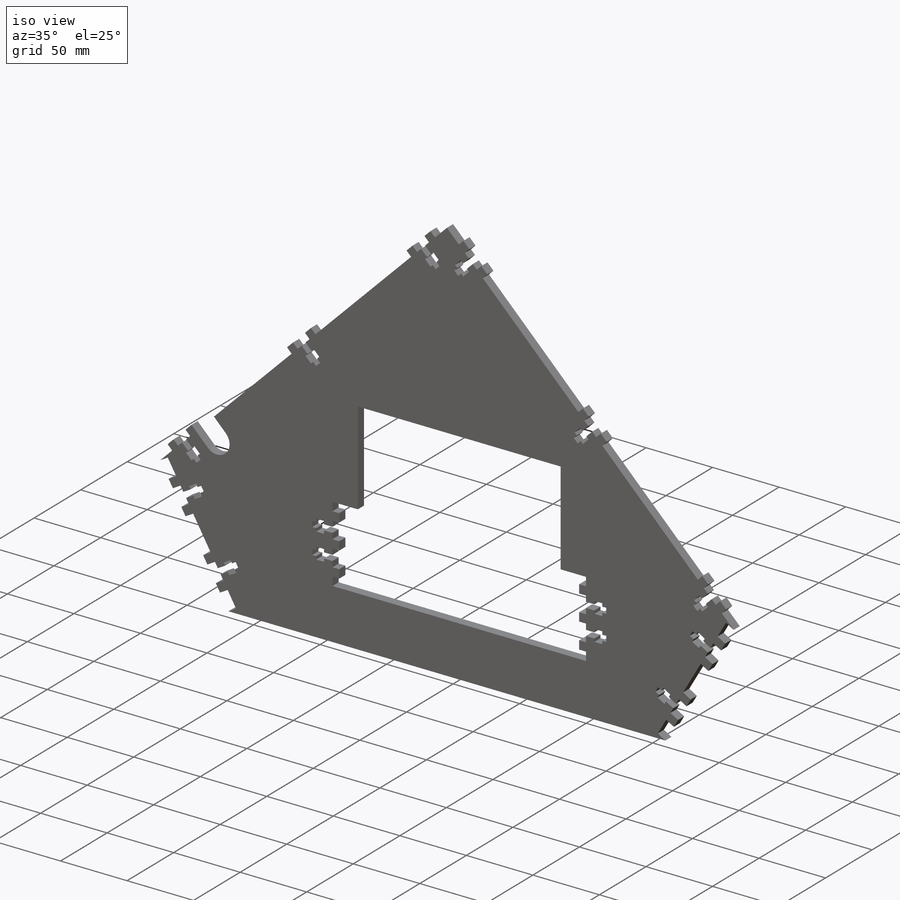
[diagram: iso view]
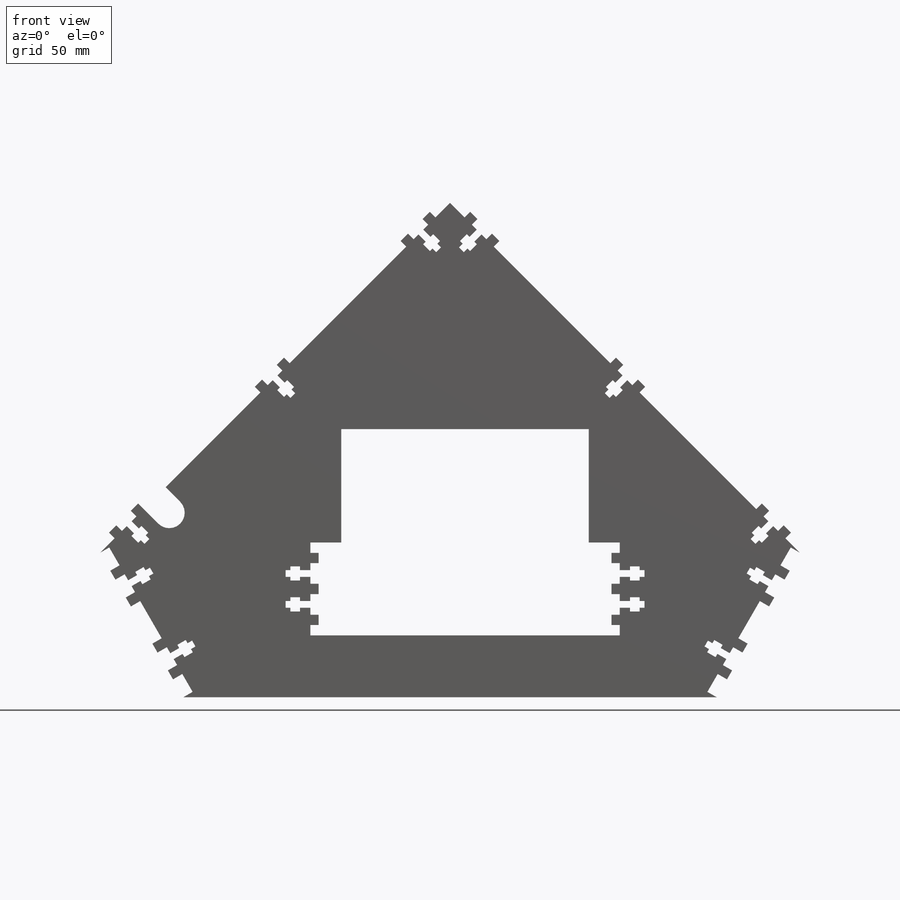
[diagram: front view]
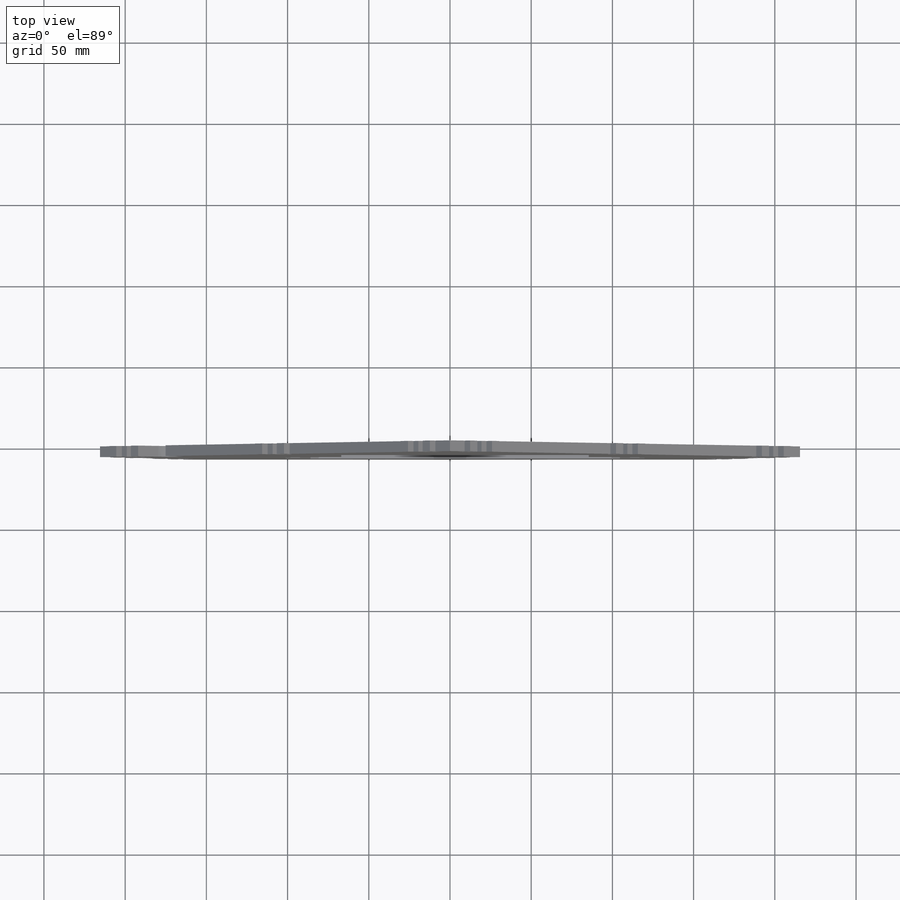
[diagram: top view]
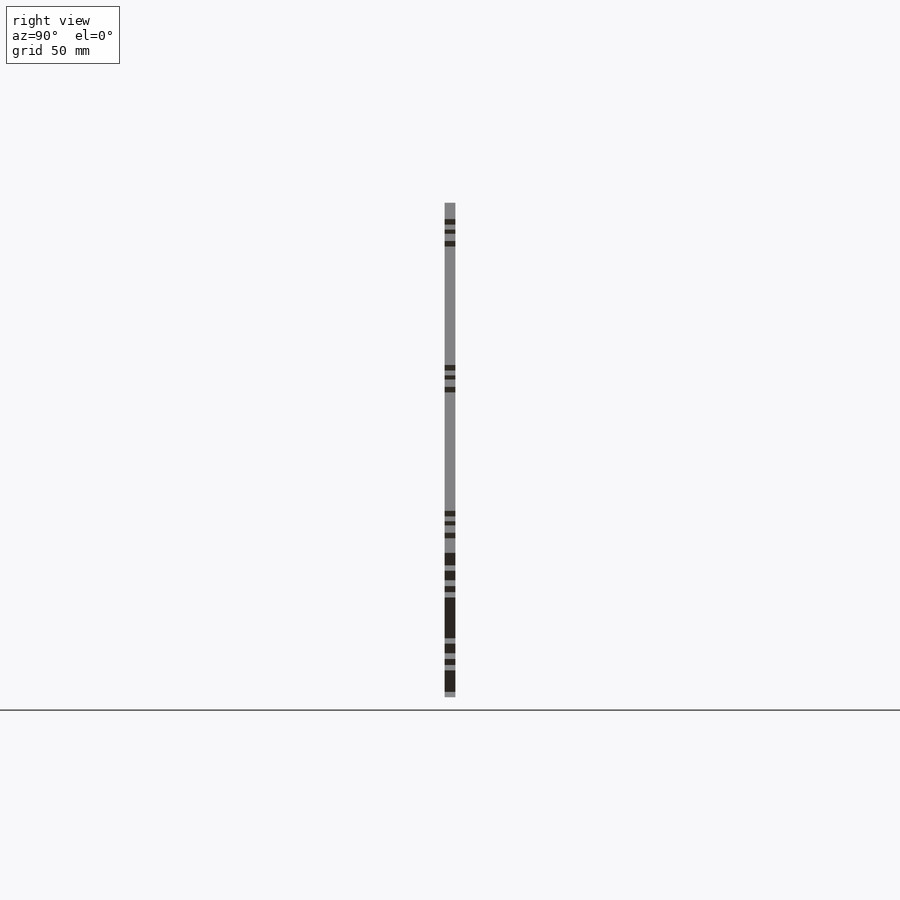
[diagram: right view]
SOLIDWORKS PART (.sldprt)
format: sldprt  version: not decoded by parser v0  size: 1,671,680 bytes
history: native  units: mm
features: sketch x7, cut_extrude x4, extrude x3, material x1 (+12 scaffold rows collapsed)
feature tree (27):
  scaffold x12  (default folders/planes/origin — collapsed)
  material  "Acrylic (Blue)"
  sketch  "Sketch1"  dims[c1.D1=304.8mm c1.D2=~76.84197mm c2.D2=120.0deg c2.D3=88.9mm c2.D1=304.8mm c2.D4=5.08mm c2.D5=12.7mm]
  extrude  "Boss-Extrude1"  Depth=6.604mm
  sketch  "Sketch2"  dims[c1.D1=127.0mm c1.D2=127.0mm c2.D1=127.0mm c2.D2=~55.986785mm c3.D2=60.0deg c3.D3=38.1mm c3.D4=152.4mm c4.D2=38.1mm c4.D5=19.05mm c4.D6=57.15mm]
  cut_extrude  "Cut-Extrude1"  [1 undecoded]
  sketch  "Sketch3"  dims[D1=6.604mm]
  cut_extrude  "Cut-Extrude2"  [1 undecoded]
  sketch  "Sketch4"  dims[D1=6.35mm D2=4.1656mm D3=25.4mm D4=4.826mm D5=8.7376mm D6=5.9436mm D7=6.35mm D8=20.32mm]
  extrude  "NUT_HOLE_2X"  Depth=6.35mm
  sketch  "Sketch6"
  cut_extrude  "Cut-Extrude3"  [1 undecoded]
  sketch  "Sketch7"
  extrude  "Boss-Extrude2"  Depth=1.778mm
  sketch  "Sketch8"  dims[c1.D1=19.05mm c1.D2=12.7mm c1.D3=101.6mm c2.D3=~0.927963deg c3.D3=~18.846792mm c4.D3=~0.927963deg c5.D3=247.65mm]
  cut_extrude  "Cut-Extrude4"  Depth=0.0508mm
decode coverage: 9 of 14 modeling features carry decoded parameters
note: ~ marks probable driven/reference dimensions
note: 3 parameter values undecoded
summary: no parameter record found for 3 features
note: suppression state not decoded; provenance and decode notes live in map.json
